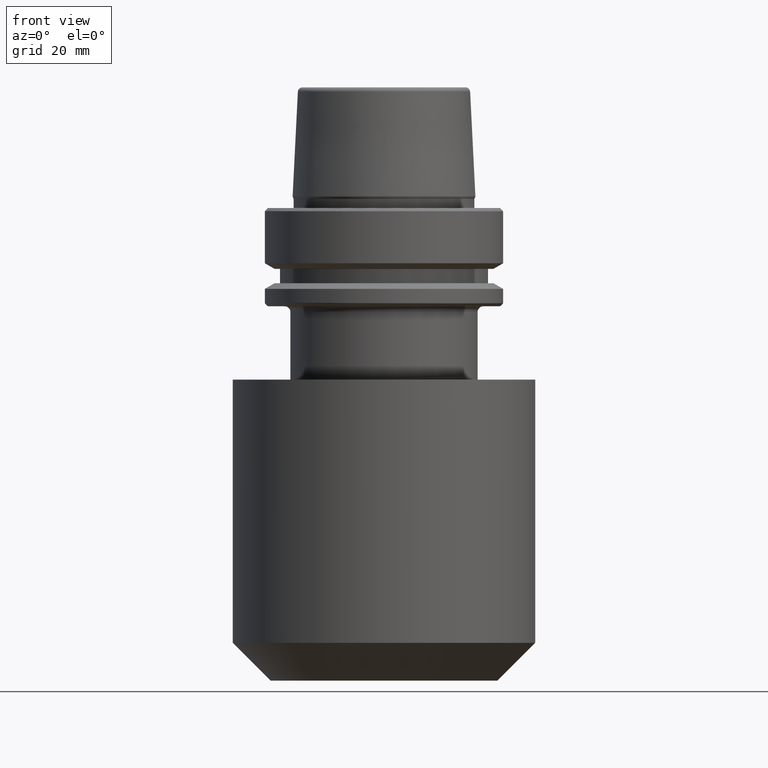
[diagram: clean part render]
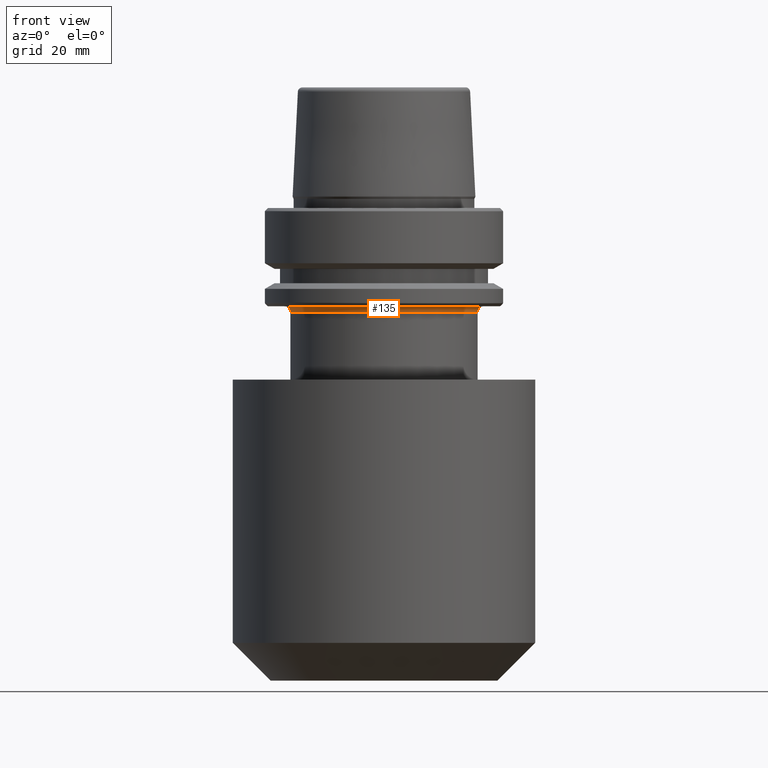
[diagram: same view with one face highlighted and labeled with its STEP entity id]
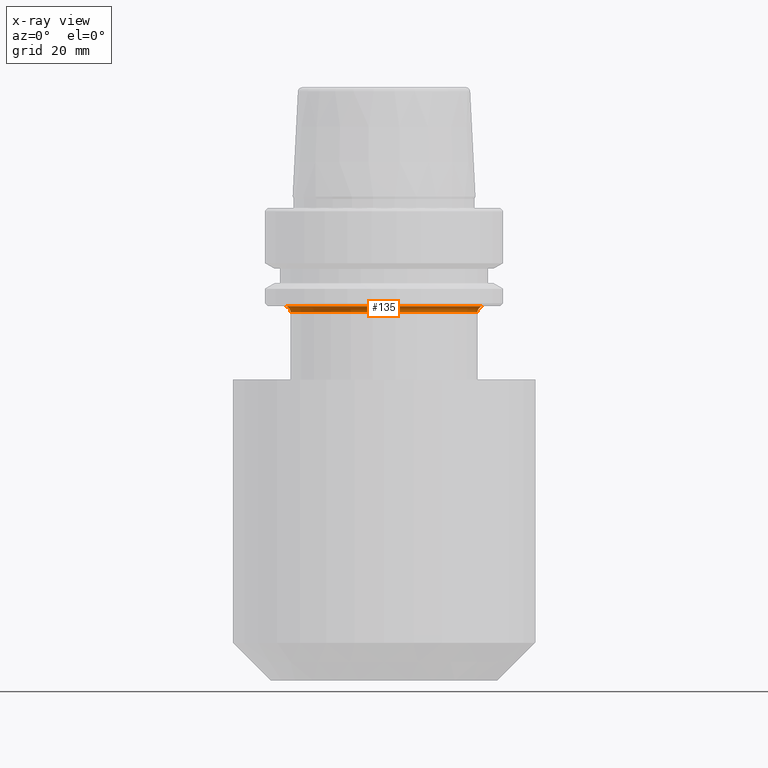
[diagram: x-ray of the same camera — body ghosted, the highlighted face saturated]
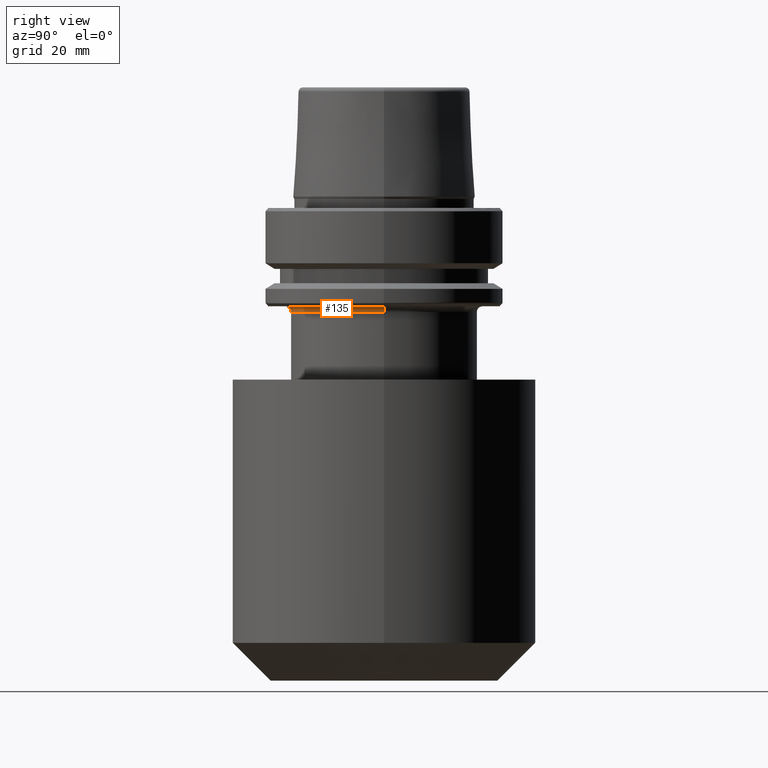
[diagram: same view with one face highlighted and labeled with its STEP entity id]
A machine part, front view. The second image highlights one B-rep face of the part: STEP entity #135.
The next image is the same camera in x-ray: the body ghosted, the highlighted face saturated — about 0% of this face is hidden behind the body in this view.
A second angle (right view) of the same face is appended — the face is thin or edge-on in the first view.
In plain terms, the highlighted toroidal blend (fillet) surface has major radius 26.25 mm and minor (blend) radius 1.5 mm.
Its self-contained STEP definition (entity closure, byte-faithful):
#30 = DIRECTION ( 'NONE',  ( -1.000000000000000000, 1.224646799147352000E-016, 0.0000000000000000000 ) ) ;
#94 = VERTEX_POINT ( 'NONE', #653 ) ;
#135 = ADVANCED_FACE ( 'NONE', ( #1060 ), #903, .F. ) ;
#143 = DIRECTION ( 'NONE',  ( 1.000000000000000000, 0.0000000000000000000, 0.0000000000000000000 ) ) ;
#215 = DIRECTION ( 'NONE',  ( 0.0000000000000000000, -1.000000000000000000, 0.0000000000000000000 ) ) ;
#241 = VERTEX_POINT ( 'NONE', #755 ) ;
#299 = CARTESIAN_POINT ( 'NONE',  ( 0.0000000000000000000, 0.0000000000000000000, -27.50000000000001100 ) ) ;
#303 = CARTESIAN_POINT ( 'NONE',  ( 0.0000000000000000000, 0.0000000000000000000, -27.50000000000001100 ) ) ;
#321 = DIRECTION ( 'NONE',  ( 1.224646799147353200E-016, 1.000000000000000000, 0.0000000000000000000 ) ) ;
#435 = AXIS2_PLACEMENT_3D ( 'NONE', #1219, #215, #1128 ) ;
#444 = EDGE_CURVE ( 'NONE', #474, #856, #449, .T. ) ;
#449 = CIRCLE ( 'NONE', #435, 1.500000000000001300 ) ;
#474 = VERTEX_POINT ( 'NONE', #616 ) ;
#556 = AXIS2_PLACEMENT_3D ( 'NONE', #845, #1152, #143 ) ;
#567 = DIRECTION ( 'NONE',  ( 0.0000000000000000000, 0.0000000000000000000, -1.000000000000000000 ) ) ;
#603 = CIRCLE ( 'NONE', #556, 26.25000000000000400 ) ;
#616 = CARTESIAN_POINT ( 'NONE',  ( 26.25000000000000400, 0.0000000000000000000, -26.00000000000001100 ) ) ;
#653 = CARTESIAN_POINT ( 'NONE',  ( -26.25000000000000400, 3.214697847761802400E-015, -26.00000000000001100 ) ) ;
#697 = AXIS2_PLACEMENT_3D ( 'NONE', #299, #702, #921 ) ;
#702 = DIRECTION ( 'NONE',  ( -0.0000000000000000000, -0.0000000000000000000, 1.000000000000000000 ) ) ;
#755 = CARTESIAN_POINT ( 'NONE',  ( -24.75000000000000000, 3.031000827889699300E-015, -27.50000000000001100 ) ) ;
#781 = ORIENTED_EDGE ( 'NONE', *, *, #799, .F. ) ;
#799 = EDGE_CURVE ( 'NONE', #856, #241, #862, .T. ) ;
#809 = ORIENTED_EDGE ( 'NONE', *, *, #1288, .T. ) ;
#826 = ORIENTED_EDGE ( 'NONE', *, *, #444, .F. ) ;
#845 = CARTESIAN_POINT ( 'NONE',  ( 0.0000000000000000000, 0.0000000000000000000, -26.00000000000001100 ) ) ;
#856 = VERTEX_POINT ( 'NONE', #1300 ) ;
#862 = CIRCLE ( 'NONE', #1140, 24.75000000000000000 ) ;
#903 = TOROIDAL_SURFACE ( 'NONE', #697, 26.25000000000000400, 1.500000000000000000 ) ;
#921 = DIRECTION ( 'NONE',  ( 1.000000000000000000, 0.0000000000000000000, 0.0000000000000000000 ) ) ;
#964 = CIRCLE ( 'NONE', #1034, 1.500000000000001300 ) ;
#976 = EDGE_CURVE ( 'NONE', #94, #474, #603, .T. ) ;
#1034 = AXIS2_PLACEMENT_3D ( 'NONE', #1192, #321, #30 ) ;
#1060 = FACE_OUTER_BOUND ( 'NONE', #1280, .T. ) ;
#1077 = ORIENTED_EDGE ( 'NONE', *, *, #976, .F. ) ;
#1083 = DIRECTION ( 'NONE',  ( 1.000000000000000000, 0.0000000000000000000, 0.0000000000000000000 ) ) ;
#1128 = DIRECTION ( 'NONE',  ( 0.0000000000000000000, 0.0000000000000000000, -1.000000000000000000 ) ) ;
#1140 = AXIS2_PLACEMENT_3D ( 'NONE', #303, #567, #1083 ) ;
#1152 = DIRECTION ( 'NONE',  ( -0.0000000000000000000, -0.0000000000000000000, 1.000000000000000000 ) ) ;
#1192 = CARTESIAN_POINT ( 'NONE',  ( -26.25000000000000400, 3.214697847761802400E-015, -27.50000000000001100 ) ) ;
#1219 = CARTESIAN_POINT ( 'NONE',  ( 26.25000000000000400, 0.0000000000000000000, -27.50000000000001100 ) ) ;
#1280 = EDGE_LOOP ( 'NONE', ( #1077, #809, #781, #826 ) ) ;
#1288 = EDGE_CURVE ( 'NONE', #94, #241, #964, .T. ) ;
#1300 = CARTESIAN_POINT ( 'NONE',  ( 24.75000000000000000, 0.0000000000000000000, -27.50000000000001100 ) ) ;